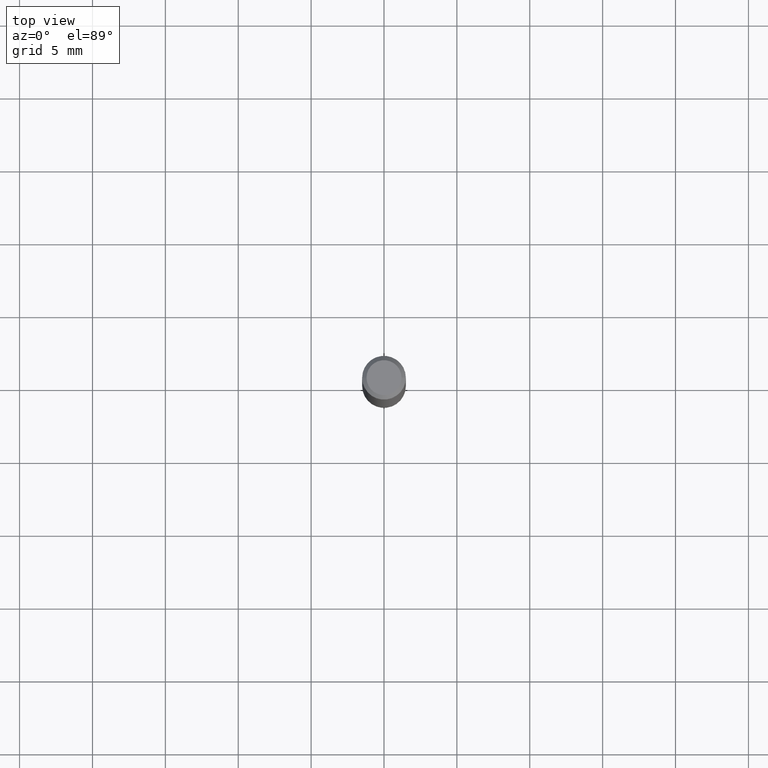
[diagram: clean part render]
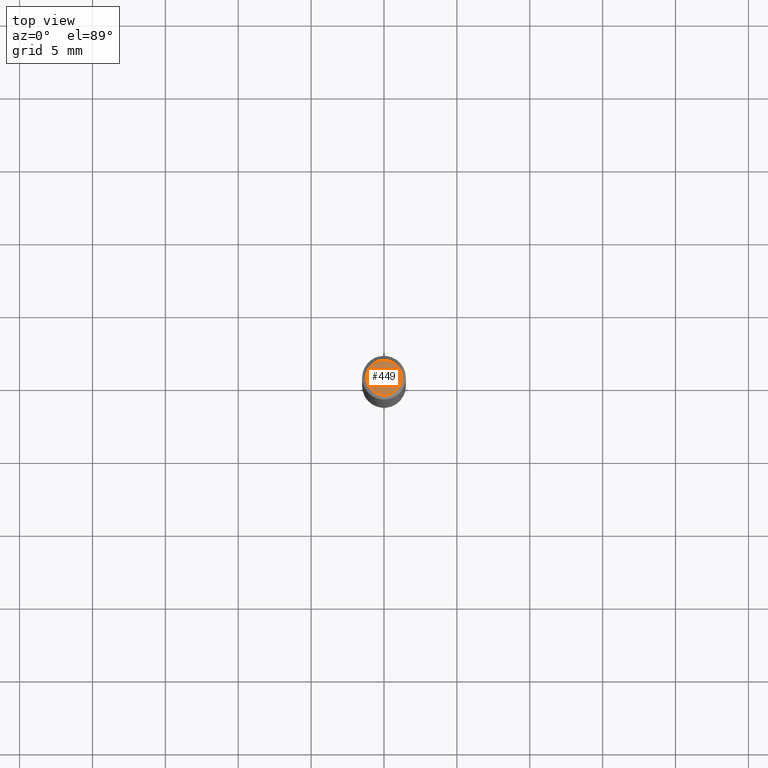
[diagram: same view with one face highlighted and labeled with its STEP entity id]
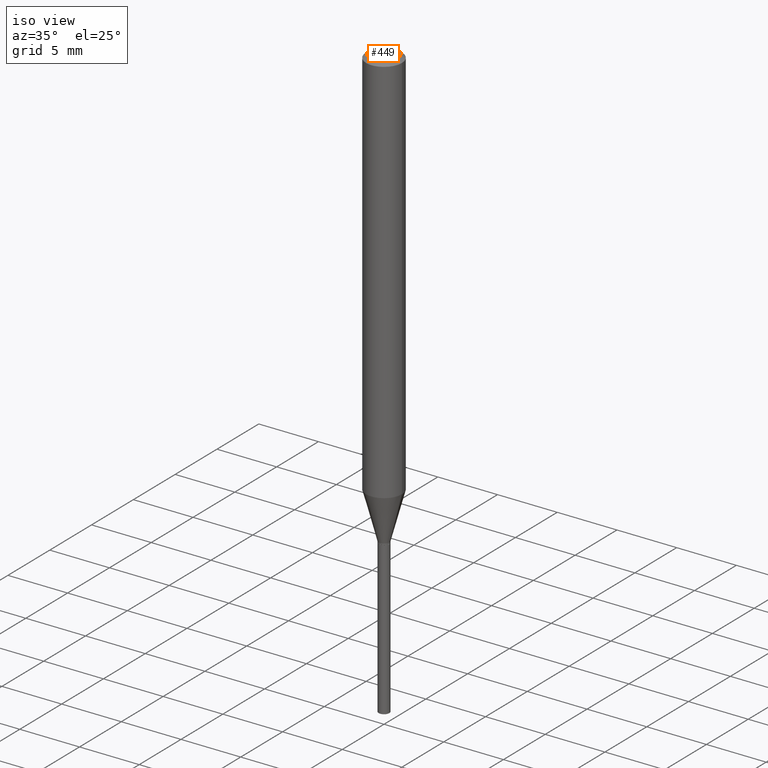
[diagram: same view with one face highlighted and labeled with its STEP entity id]
A machine part, top view. The second image highlights one B-rep face of the part: STEP entity #449.
A second angle (iso view) of the same face is appended — the face is thin or edge-on in the first view.
In plain terms, the highlighted planar face has unit normal (0, -0, -1).
Its self-contained STEP definition (entity closure, byte-faithful):
#11 = CARTESIAN_POINT ( 'NONE',  ( 0.04724000000000000421, -3.852183633974369838E-16, -3.380025165621689721E-19 ) ) ;
#25 = CIRCLE ( 'NONE', #103, 0.04724000000000000421 ) ;
#30 = EDGE_LOOP ( 'NONE', ( #315, #332 ) ) ;
#53 = FACE_OUTER_BOUND ( 'NONE', #30, .T. ) ;
#92 = DIRECTION ( 'NONE',  ( 1.000000000000000000, -6.982962677686266711E-15, 4.876185090822587894E-29 ) ) ;
#94 = DIRECTION ( 'NONE',  ( -2.445468806185136597E-29, 3.491481338843145583E-15, 1.000000000000000000 ) ) ;
#103 = AXIS2_PLACEMENT_3D ( 'NONE', #432, #94, #355 ) ;
#173 = DIRECTION ( 'NONE',  ( 2.438088387897960049E-29, -3.491481338843145188E-15, -1.000000000000000000 ) ) ;
#198 = VERTEX_POINT ( 'NONE', #374 ) ;
#215 = CIRCLE ( 'NONE', #292, 0.04724000000000000421 ) ;
#225 = EDGE_CURVE ( 'NONE', #309, #198, #25, .T. ) ;
#250 = DIRECTION ( 'NONE',  ( -1.000000000000000000, 6.982962677686265922E-15, -4.876176775795935793E-29 ) ) ;
#292 = AXIS2_PLACEMENT_3D ( 'NONE', #392, #348, #92 ) ;
#295 = EDGE_CURVE ( 'NONE', #198, #309, #215, .T. ) ;
#309 = VERTEX_POINT ( 'NONE', #11 ) ;
#315 = ORIENTED_EDGE ( 'NONE', *, *, #295, .T. ) ;
#332 = ORIENTED_EDGE ( 'NONE', *, *, #225, .T. ) ;
#348 = DIRECTION ( 'NONE',  ( -2.445468806185136597E-29, 3.491481338843145583E-15, 1.000000000000000000 ) ) ;
#355 = DIRECTION ( 'NONE',  ( 1.000000000000000000, -6.982962677686266711E-15, 4.876185090822587894E-29 ) ) ;
#374 = CARTESIAN_POINT ( 'NONE',  ( -0.04724000000000000421, 3.504923541997677355E-16, -3.380025165670481712E-19 ) ) ;
#392 = CARTESIAN_POINT ( 'NONE',  ( 8.265746106709734507E-48, -1.180129479067563789E-33, -3.380025165646692144E-19 ) ) ;
#401 = CARTESIAN_POINT ( 'NONE',  ( 4.132873053354867254E-48, -5.900647395337818946E-34, -1.690012582823346072E-19 ) ) ;
#432 = CARTESIAN_POINT ( 'NONE',  ( 8.265746106709734507E-48, -1.180129479067563789E-33, -3.380025165646692144E-19 ) ) ;
#444 = AXIS2_PLACEMENT_3D ( 'NONE', #401, #173, #250 ) ;
#449 = ADVANCED_FACE ( 'NONE', ( #53 ), #477, .F. ) ;
#477 = PLANE ( 'NONE',  #444 ) ;